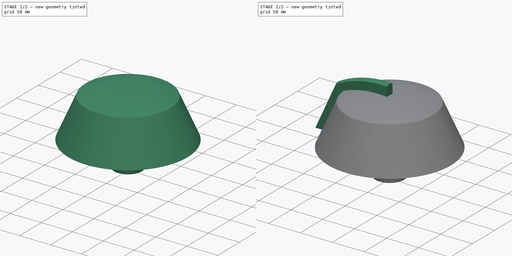
[diagram: build sequence overview — one tinted view per stage of 2, left to right]
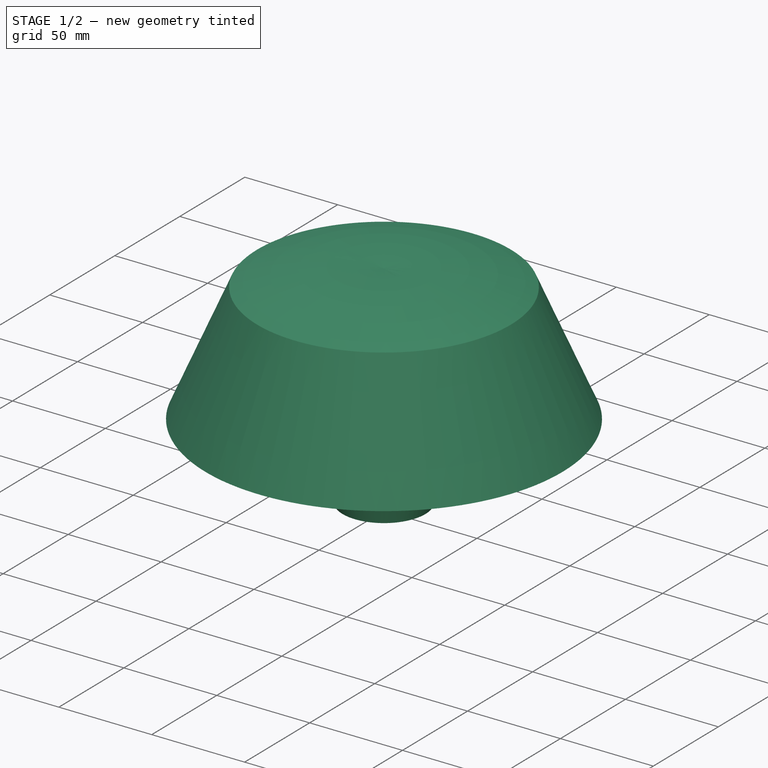
[diagram: stage 1 of 2 — iso view after this stage's code; geometry added in this stage tinted green]
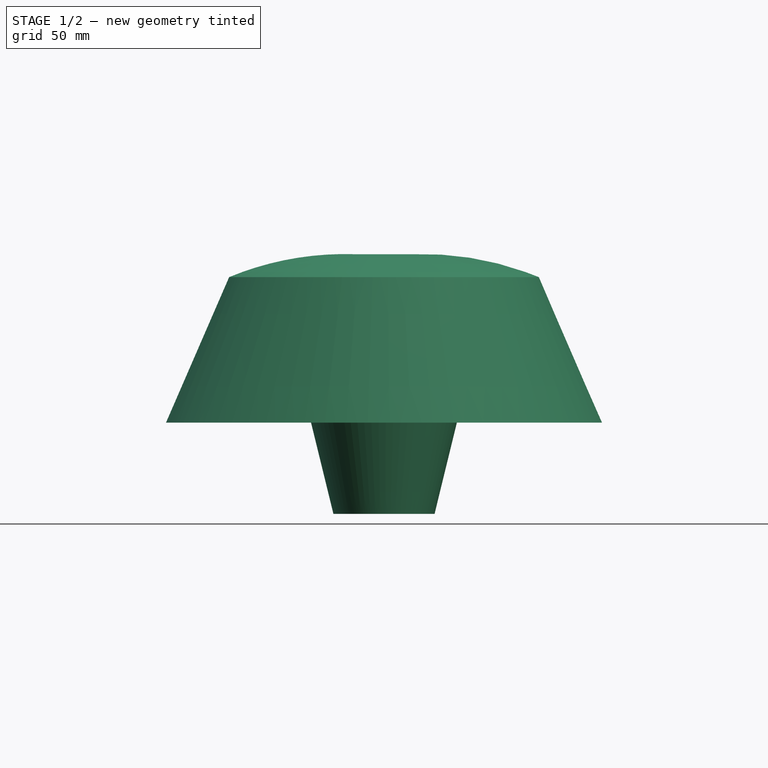
[diagram: stage 1 of 2 — front view after this stage's code; geometry added in this stage tinted green]
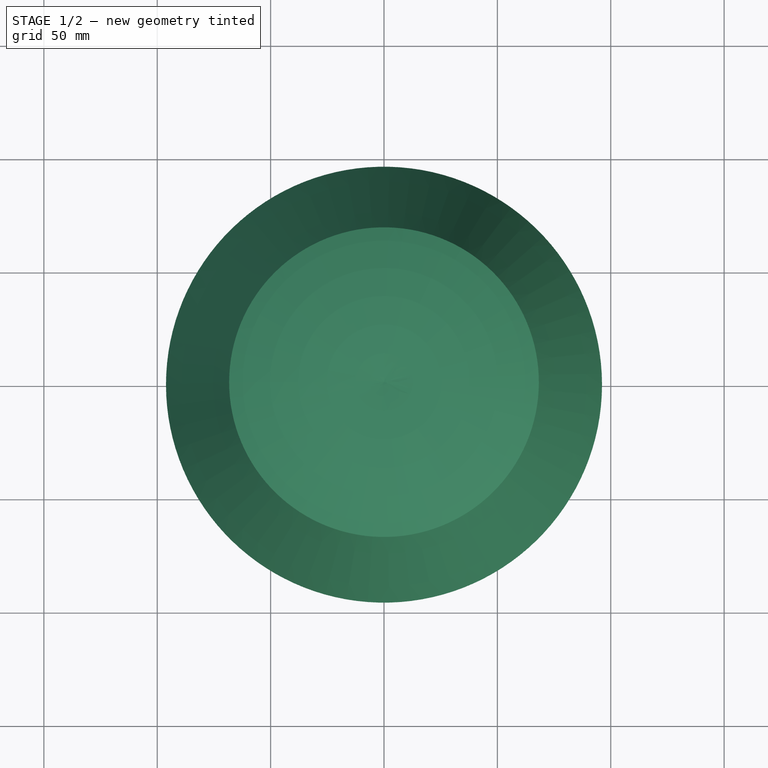
[diagram: stage 1 of 2 — top view after this stage's code; geometry added in this stage tinted green]
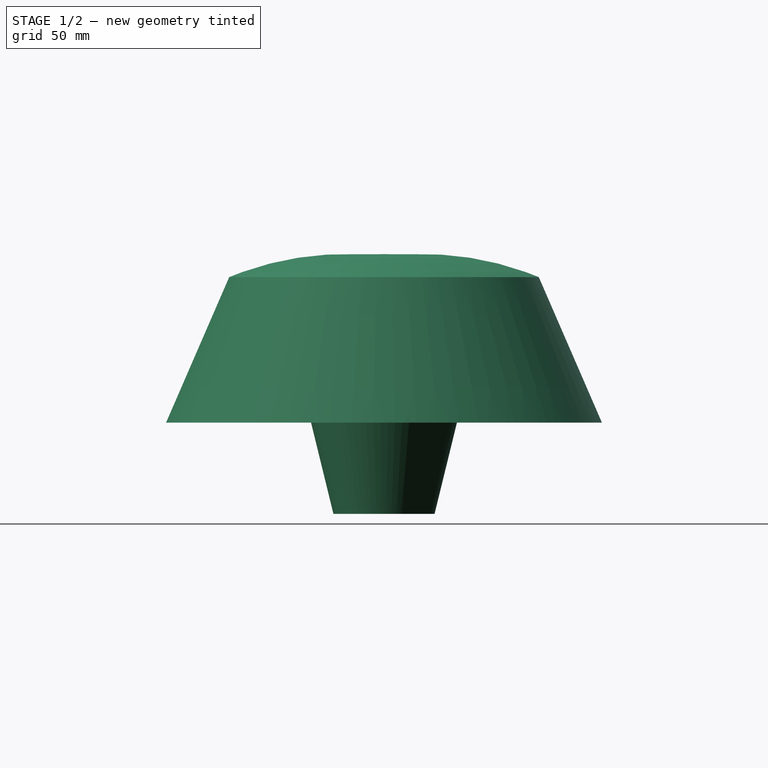
[diagram: stage 1 of 2 — right view after this stage's code; geometry added in this stage tinted green]
FCSTD DOCUMENT  (FreeCAD 1.0R39319 (Git))
Label: session5_practice
License: All rights reserved
LicenseURL: https://en.wikipedia.org/wiki/All_rights_reserved
objects: Sketcher::SketchObject×4, PartDesign::AdditivePipe×2, PartDesign::Revolution×1, PartDesign::Body×1
note: 18 computed .brp shape members not serialized (recipe doc carries the construction recipe); baked Part::Feature solids carry a one-line shape summary decoded from their .brp

FEATURE [Sketcher::SketchObject] Sketch
  ArcFitTolerance = 1e-06
  AttachmentSupport = -> [XZ_Plane]
  FullyConstrained = true
  MakeInternals = false
  MapMode = 5
  Placement = pos=(0,0,0) rot=(1,0,0;1.5708rad)
  sketch-geometry (10):
    g0: LineSegment StartX=-68.2869 StartY=104.428 StartZ=0 EndX=-96.1367 EndY=40.2582 EndZ=0
    g1: LineSegment StartX=-96.1367 StartY=40.2582 StartZ=0 EndX=-77.8817 EndY=40.2582 EndZ=0
    g2: LineSegment StartX=-77.8817 StartY=40.2582 StartZ=0 EndX=-57.1825 EndY=87.9524 EndZ=0
    g3: LineSegment StartX=-57.1825 StartY=87.9524 StartZ=0 EndX=-43.8688 EndY=87.9524 EndZ=0
    g4: LineSegment StartX=-43.8688 StartY=87.9524 StartZ=0 EndX=-22.3023 EndY=0 EndZ=0
    g5: LineSegment StartX=-22.3023 StartY=0 StartZ=0 EndX=-10.0214 EndY=0 EndZ=0
    g6: LineSegment StartX=-10.0214 StartY=0 StartZ=0 EndX=-10.0214 EndY=21.4556 EndZ=0
    g7: LineSegment StartX=-10.0214 StartY=21.4556 StartZ=0 EndX=0 EndY=21.4556 EndZ=0
    g8: LineSegment StartX=0 StartY=113.498 StartZ=0 EndX=0 EndY=21.4556 EndZ=0
    g9: ArcOfCircle CenterX=-17.1371 CenterY=-19.0789 CenterZ=0 NormalX=0 NormalY=0 NormalZ=1 AngleXU=0 Radius=133.68 StartAngle=1.44225 EndAngle=1.96344
  constraints (26):
    c: PointOnObject(g8,g-2)
    c: Coincident(g0,g1)
    c: Horizontal(g1)
    c: Coincident(g1,g2)
    c: Coincident(g2,g3)
    c: Horizontal(g3)
    c: Coincident(g3,g4)
    c: Coincident(g4,g5)
    c: Coincident(g5,g6)
    c: Vertical(g6)
    c: Coincident(g6,g7)
    c: Horizontal(g7)
    c: Horizontal(g5)
    c: PointOnObject(g4,g-1)
    c: Parallel(g0,g2)
    c: Block(g7)
    c: Block(g6)
    c: Block(g5)
    c: Block(g4)
    c: Block(g3)
    c: Block(g2)
    c: Coincident(g8,g7)
    c: Vertical(g8)
    c: Coincident(g9,g0)
    c: Coincident(g9,g8)
    c: Block(g9)
FEATURE [PartDesign::Revolution] Revolution
  Angle = 360
  Angle2 = 60
  Axis = (1e-16,1e-16,1)
  Base = (0,0,0)
  Placement = pos=(0,0,0) rot=(1,0,0;1.5708rad)
  Profile = -> Sketch
  ReferenceAxis = -> Z_Axis
  Refine = true
  Suppressed = false
  Type = 0
FEATURE [Sketcher::SketchObject] Sketch001
  ArcFitTolerance = 1e-06
  AttachmentSupport = -> [YZ_Plane]
  FullyConstrained = false
  MakeInternals = false
  MapMode = 5
  Placement = pos=(0,0,0) rot=(0.57735,0.57735,0.57735;2.0944rad)
  sketch-geometry (4):
    g0: LineSegment StartX=-5.51 StartY=129.677 StartZ=0 EndX=-5.51 EndY=114.756 EndZ=0
    g1: LineSegment StartX=-5.51 StartY=114.756 StartZ=0 EndX=5.51 EndY=114.756 EndZ=0
    g2: LineSegment StartX=5.51 StartY=114.756 StartZ=0 EndX=5.51 EndY=129.677 EndZ=0
    g3: ArcOfCircle CenterX=2.05e-14 CenterY=101.026 CenterZ=0 NormalX=0 NormalY=0 NormalZ=1 AngleXU=0 Radius=29.1766 StartAngle=1.38081 EndAngle=1.76079
  constraints (10):
    c: Coincident(g1,g0)
    c: Horizontal(g1)
    c: Vertical(g2)
    c: Vertical(g0)
    c: Equal(g0,g2)
    c: Coincident(g1,g2)
    c: Distance(g-2,g0) = 5.51
    c: Distance(g2,g-2) = 5.51
    c: Coincident(g3,g0)
    c: Coincident(g3,g2)
FEATURE [PartDesign::AdditivePipe] AdditivePipe
  AuxilleryCurvelinear = true
  AuxillerySpineTangent = false
  BaseFeature = -> Revolution
  Binormal = (0,0,0)
  Mode = 0
  Placement = pos=(0,0,0) rot=(1,0,0;1.5708rad)
  Profile = -> Sketch001
  Refine = true
  Spine = -> Revolution [Edge14,Edge3]
  SpineTangent = false
  Suppressed = false
  Transformation = 1
  Transition = 0
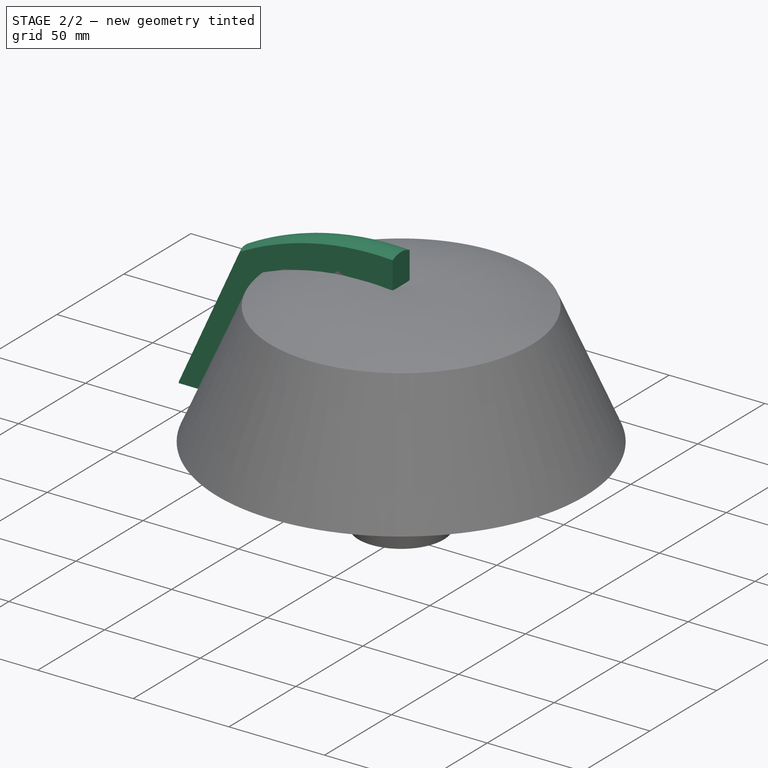
[diagram: stage 2 of 2 — iso view after this stage's code; geometry added in this stage tinted green]
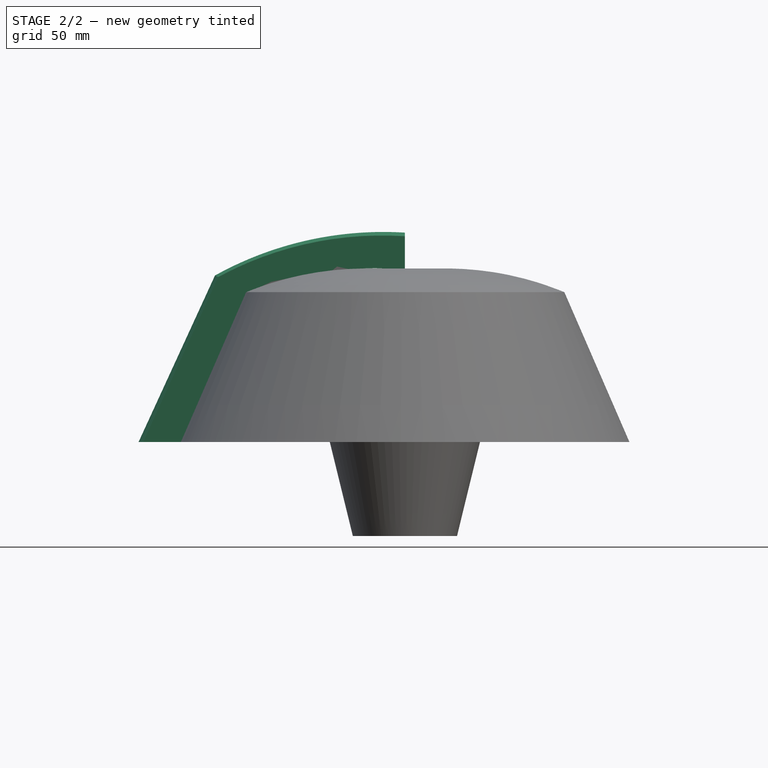
[diagram: stage 2 of 2 — front view after this stage's code; geometry added in this stage tinted green]
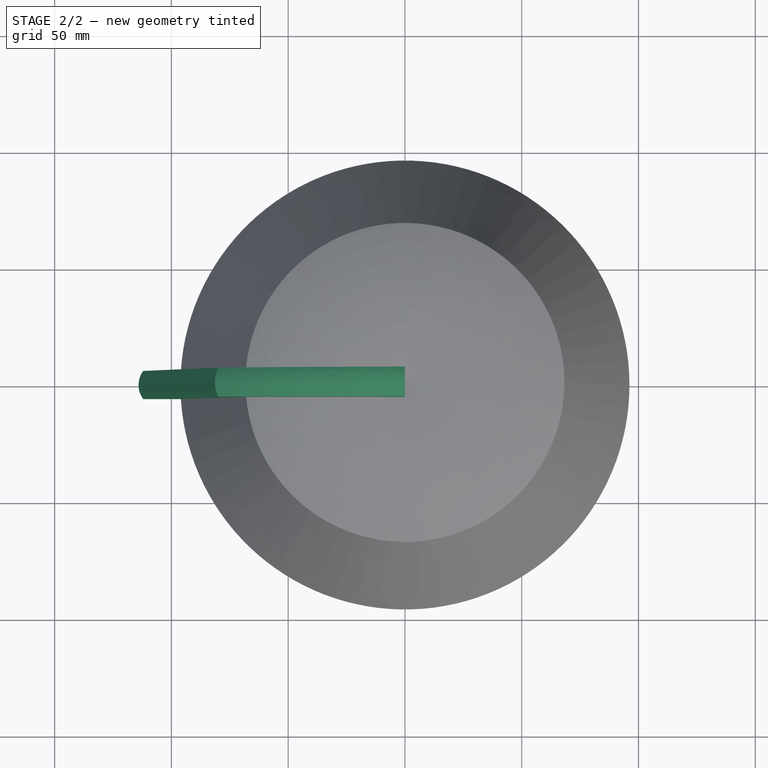
[diagram: stage 2 of 2 — top view after this stage's code; geometry added in this stage tinted green]
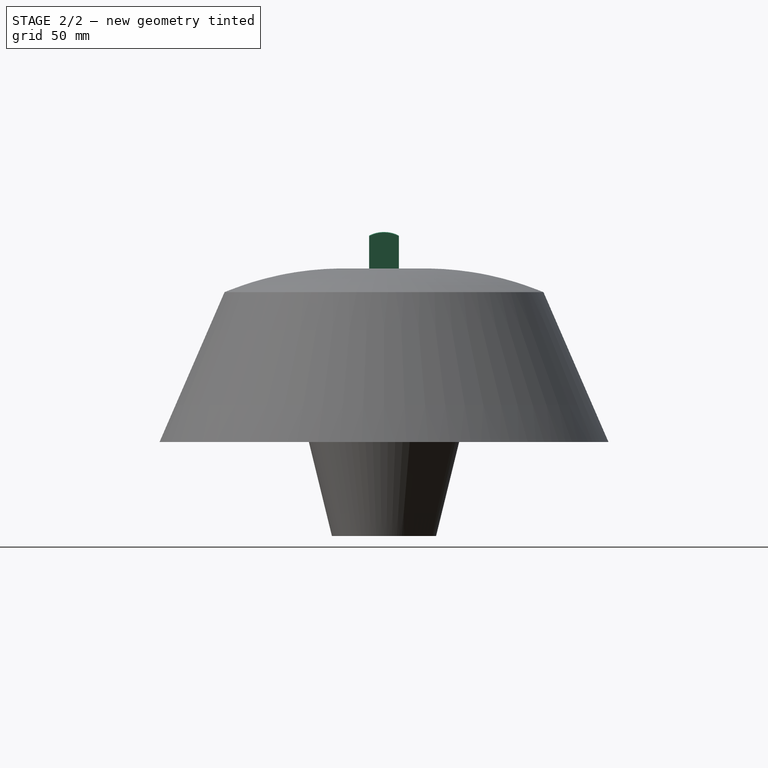
[diagram: stage 2 of 2 — right view after this stage's code; geometry added in this stage tinted green]
FEATURE [Sketcher::SketchObject] Sketch002
  ArcFitTolerance = 1e-06
  AttachmentSupport = -> [YZ_Plane]
  FullyConstrained = false
  MakeInternals = false
  MapMode = 5
  Placement = pos=(0,0,0) rot=(0.57735,0.57735,0.57735;2.0944rad)
  sketch-geometry (4):
    g0: LineSegment StartX=-6.37766 StartY=128.371 StartZ=0 EndX=-6.37766 EndY=113.998 EndZ=0
    g1: LineSegment StartX=-6.37766 StartY=113.998 StartZ=0 EndX=6.37 EndY=113.998 EndZ=0
    g2: LineSegment StartX=6.37 StartY=113.998 StartZ=0 EndX=6.37 EndY=128.371 EndZ=0
    g3: ArcOfCircle CenterX=-0.00382954 CenterY=116.166 CenterZ=0 NormalX=0 NormalY=0 NormalZ=1 AngleXU=0 Radius=13.7689 StartAngle=1.08951 EndAngle=2.05208
  constraints (9):
    c: Coincident(g0,g1)
    c: Horizontal(g1)
    c: Coincident(g1,g2)
    c: Vertical(g2)
    c: Equal(g2,g0)
    c: Vertical(g0)
    c: Coincident(g3,g0)
    c: Coincident(g3,g2)
    c: Distance(g2,g-2) = 6.37
FEATURE [Sketcher::SketchObject] Sketch003
  ArcFitTolerance = 1e-06
  AttachmentSupport = -> [AdditivePipe]
  FullyConstrained = false
  MakeInternals = false
  MapMode = 5
  Placement = pos=(4.4e-15,1.33e-14,40.2582) rot=(1,0,0;3.14159rad)
  sketch-geometry (5):
    g0: LineSegment StartX=-112.064 StartY=-6.02571 StartZ=0 EndX=-87.5682 EndY=-6.02571 EndZ=0
    g1: LineSegment StartX=-87.5682 StartY=-6.02571 StartZ=0 EndX=-87.5682 EndY=6.02572 EndZ=0
    g2: LineSegment StartX=-87.5682 StartY=6.02571 StartZ=0 EndX=-112.064 EndY=6.02571 EndZ=0
    g3: GeomPoint [constr] X=-99.8161 Y=0 Z=0
    g4: ArcOfCircle CenterX=-104.007 CenterY=-1.23746e-06 CenterZ=0 NormalX=0 NormalY=0 NormalZ=1 AngleXU=0 Radius=10.061 StartAngle=2.49944 EndAngle=3.78374
  constraints (9):
    c: Coincident(g0,g1)
    c: Coincident(g1,g2)
    c: Vertical(g1)
    c: Horizontal(g0)
    c: Horizontal(g2)
    c: Symmetric(g1,g2,g3)
    c: PointOnObject(g3,g-1)
    c: Coincident(g4,g2)
    c: Coincident(g4,g0)
FEATURE [PartDesign::AdditivePipe] AdditivePipe001
  AuxilleryCurvelinear = true
  AuxillerySpineTangent = false
  BaseFeature = -> AdditivePipe
  Binormal = (0,0,0)
  Mode = 0
  Placement = pos=(0,0,0) rot=(1,0,0;1.5708rad)
  Profile = -> Sketch002
  Refine = true
  Sections = -> [Sketch003]
  Spine = -> AdditivePipe [Edge14,Edge3]
  SpineTangent = false
  Suppressed = false
  Transformation = 1
  Transition = 0
FEATURE [PartDesign::Body] Body
  AllowCompound = false
  Group = -> [Sketch,Revolution,Sketch001,AdditivePipe,Sketch002,Sketch003,AdditivePipe001]
  Origin = -> Origin
  Tip = -> AdditivePipe001
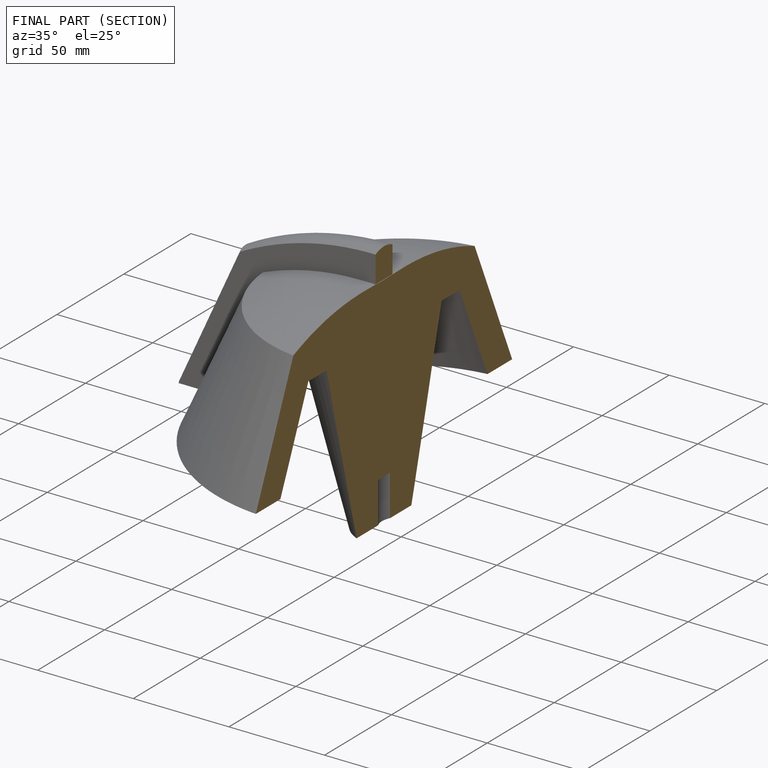
[diagram: finished part — half-section view (interior)]
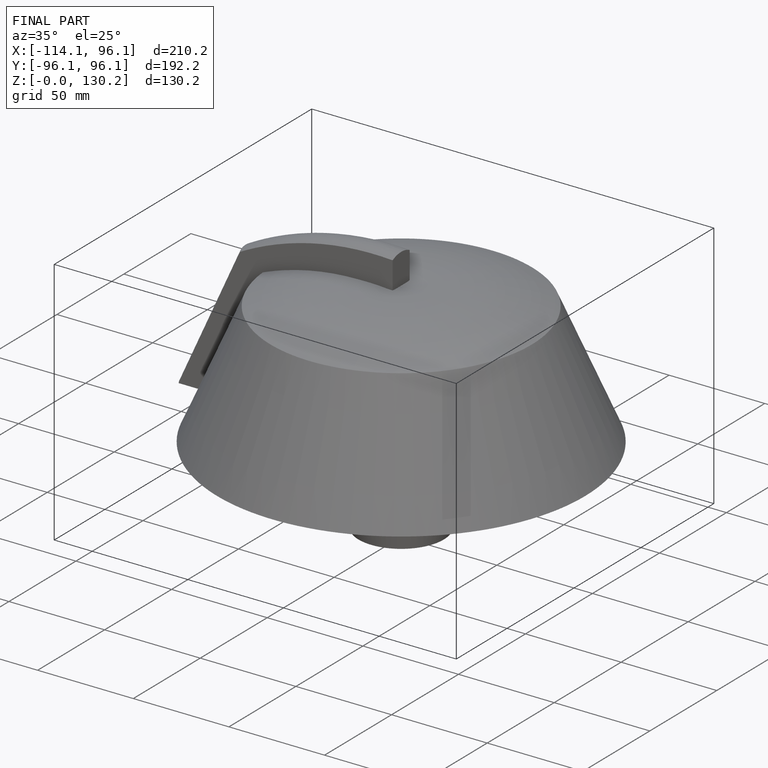
[diagram: finished part — iso view with bounding-box wireframe]
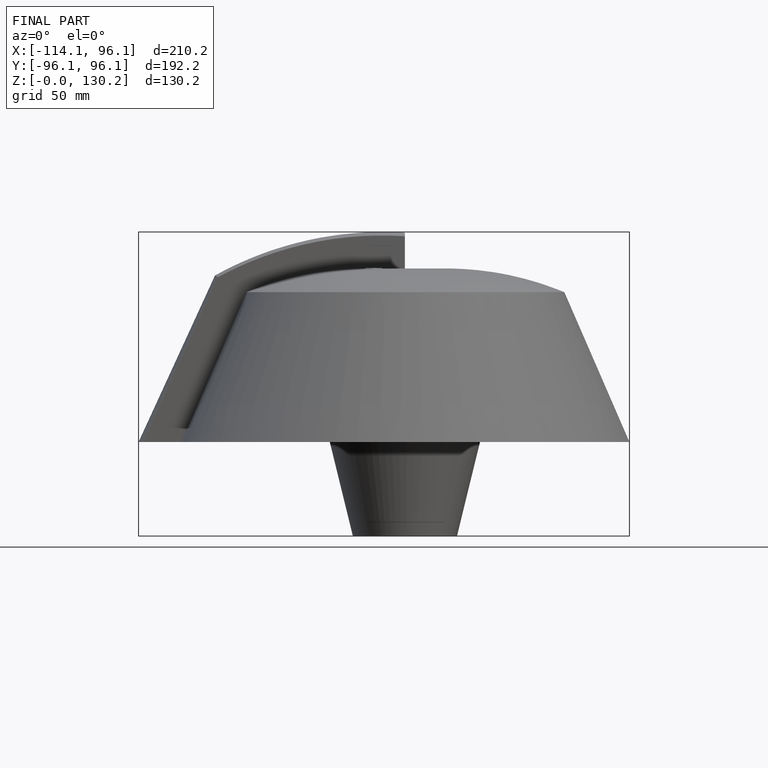
[diagram: finished part — front view with bounding-box wireframe]
